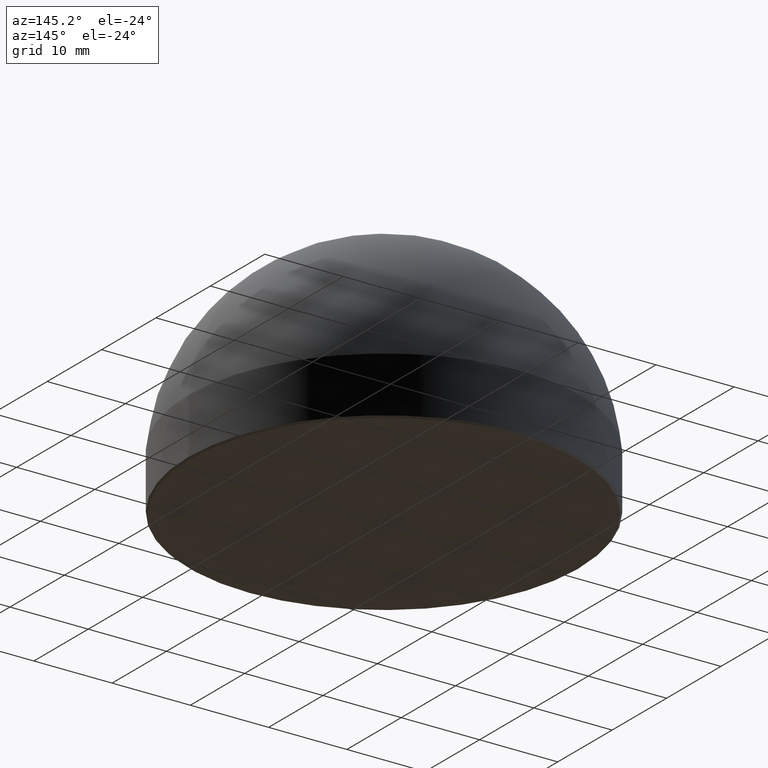
[diagram: clean part render]
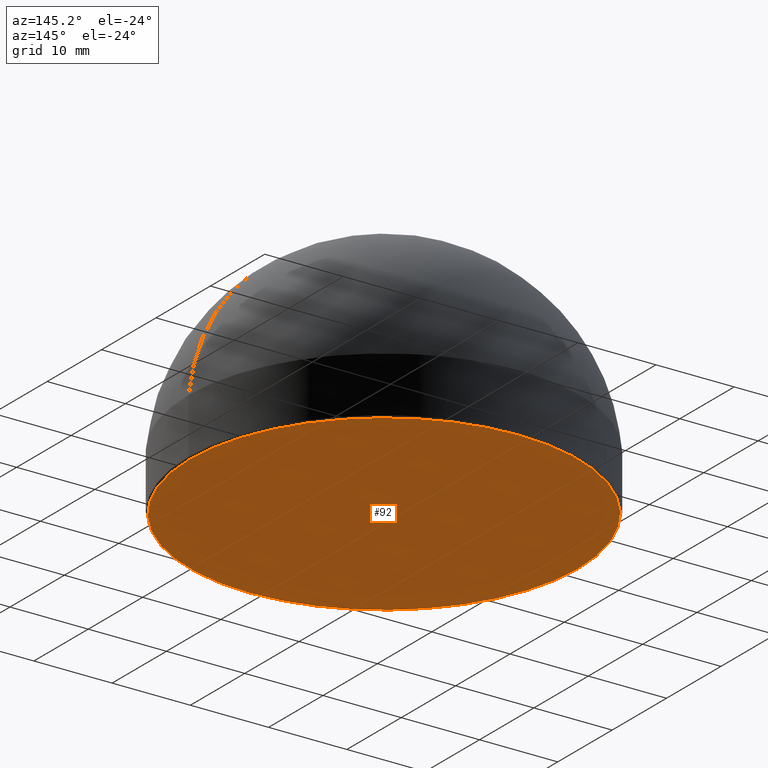
[diagram: same view with one face highlighted and labeled with its STEP entity id]
A machine part, auxiliary view. The second image highlights one B-rep face of the part: STEP entity #92.
In plain terms, the highlighted planar face has unit normal (0, 0, 1).
Its self-contained STEP definition (entity closure, byte-faithful):
#5 = DIRECTION ( 'NONE',  ( 1.000000000000000000, 0.000000000000000000, 0.000000000000000000 ) ) ;
#6 = CARTESIAN_POINT ( 'NONE',  ( 24.79999999999999005, 0.000000000000000000, 0.000000000000000000 ) ) ;
#7 = CIRCLE ( 'NONE', #176, 24.79999999999999005 ) ;
#10 = VERTEX_POINT ( 'NONE', #58 ) ;
#17 = CIRCLE ( 'NONE', #85, 24.79999999999999005 ) ;
#21 = PLANE ( 'NONE',  #94 ) ;
#58 = CARTESIAN_POINT ( 'NONE',  ( -24.79999999999999005, 3.049370529876908897E-15, 0.000000000000000000 ) ) ;
#67 = CARTESIAN_POINT ( 'NONE',  ( 0.000000000000000000, 0.000000000000000000, 0.000000000000000000 ) ) ;
#81 = CARTESIAN_POINT ( 'NONE',  ( 0.000000000000000000, 0.000000000000000000, 0.000000000000000000 ) ) ;
#82 = DIRECTION ( 'NONE',  ( -0.000000000000000000, -0.000000000000000000, -1.000000000000000000 ) ) ;
#85 = AXIS2_PLACEMENT_3D ( 'NONE', #67, #188, #187 ) ;
#92 = ADVANCED_FACE ( 'NONE', ( #205 ), #21, .F. ) ;
#94 = AXIS2_PLACEMENT_3D ( 'NONE', #81, #153, #186 ) ;
#95 = EDGE_LOOP ( 'NONE', ( #180, #112 ) ) ;
#97 = EDGE_CURVE ( 'NONE', #193, #10, #17, .T. ) ;
#112 = ORIENTED_EDGE ( 'NONE', *, *, #185, .T. ) ;
#153 = DIRECTION ( 'NONE',  ( 0.000000000000000000, 0.000000000000000000, 1.000000000000000000 ) ) ;
#170 = CARTESIAN_POINT ( 'NONE',  ( 0.000000000000000000, 0.000000000000000000, 0.000000000000000000 ) ) ;
#176 = AXIS2_PLACEMENT_3D ( 'NONE', #170, #82, #5 ) ;
#180 = ORIENTED_EDGE ( 'NONE', *, *, #97, .T. ) ;
#185 = EDGE_CURVE ( 'NONE', #10, #193, #7, .T. ) ;
#186 = DIRECTION ( 'NONE',  ( 1.000000000000000000, 0.000000000000000000, -0.000000000000000000 ) ) ;
#187 = DIRECTION ( 'NONE',  ( 1.000000000000000000, 0.000000000000000000, 0.000000000000000000 ) ) ;
#188 = DIRECTION ( 'NONE',  ( -0.000000000000000000, -0.000000000000000000, -1.000000000000000000 ) ) ;
#193 = VERTEX_POINT ( 'NONE', #6 ) ;
#205 = FACE_OUTER_BOUND ( 'NONE', #95, .T. ) ;